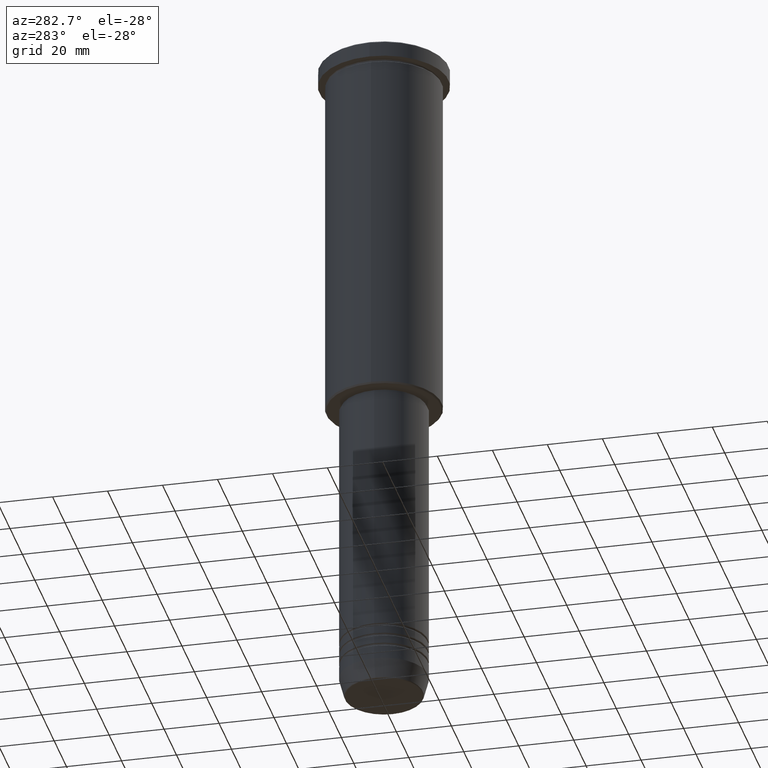
[diagram: clean part render]
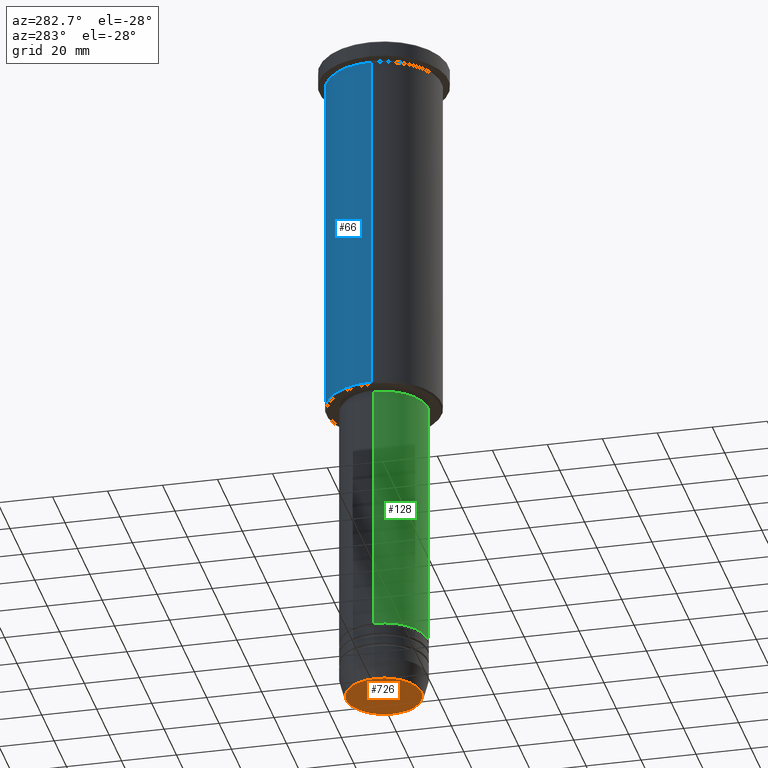
[diagram: same view with three faces highlighted in distinct colors, each labeled with its STEP entity id]
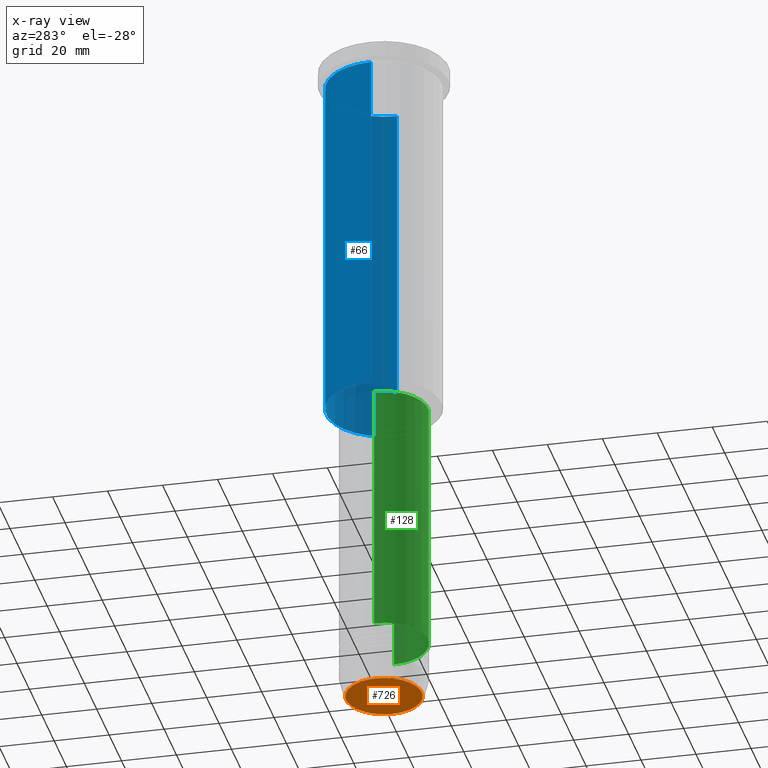
[diagram: x-ray of the same camera — body ghosted, the three highlighted faces saturated]
A machine part, auxiliary view with three faces highlighted in distinct colors.
The next image is the same camera in x-ray (body ghosted, the three faces saturated) — at least one of them is partly hidden behind the body in this view.
Their STEP definitions:

[orange] entity #726 — the highlighted planar face has unit normal (0, -0, 1).
#64 = DIRECTION ( 'NONE',  ( 1.000000000000000000, 0.000000000000000000, 0.000000000000000000 ) ) ;
#79 = VERTEX_POINT ( 'NONE', #872 ) ;
#117 = DIRECTION ( 'NONE',  ( 0.000000000000000000, -0.000000000000000000, 1.000000000000000000 ) ) ;
#133 = DIRECTION ( 'NONE',  ( 1.000000000000000000, 0.000000000000000000, 0.000000000000000000 ) ) ;
#137 = AXIS2_PLACEMENT_3D ( 'NONE', #518, #345, #64 ) ;
#139 = CARTESIAN_POINT ( 'NONE',  ( -13.74069215899265828, 1.712322416342415986E-15, -251.0000000000000000 ) ) ;
#345 = DIRECTION ( 'NONE',  ( 0.000000000000000000, 0.000000000000000000, -1.000000000000000000 ) ) ;
#369 = CIRCLE ( 'NONE', #1042, 13.74069215899265828 ) ;
#439 = EDGE_CURVE ( 'NONE', #79, #834, #369, .T. ) ;
#459 = ORIENTED_EDGE ( 'NONE', *, *, #439, .T. ) ;
#506 = FACE_OUTER_BOUND ( 'NONE', #671, .T. ) ;
#518 = CARTESIAN_POINT ( 'NONE',  ( 0.000000000000000000, 0.000000000000000000, -251.0000000000000000 ) ) ;
#601 = PLANE ( 'NONE',  #722 ) ;
#671 = EDGE_LOOP ( 'NONE', ( #459, #1163 ) ) ;
#722 = AXIS2_PLACEMENT_3D ( 'NONE', #939, #117, #778 ) ;
#726 = ADVANCED_FACE ( 'NONE', ( #506 ), #601, .F. ) ;
#778 = DIRECTION ( 'NONE',  ( 1.000000000000000000, 0.000000000000000000, 0.000000000000000000 ) ) ;
#785 = CARTESIAN_POINT ( 'NONE',  ( 0.000000000000000000, 0.000000000000000000, -251.0000000000000000 ) ) ;
#806 = DIRECTION ( 'NONE',  ( 0.000000000000000000, 0.000000000000000000, -1.000000000000000000 ) ) ;
#833 = EDGE_CURVE ( 'NONE', #834, #79, #982, .T. ) ;
#834 = VERTEX_POINT ( 'NONE', #139 ) ;
#872 = CARTESIAN_POINT ( 'NONE',  ( 13.74069215899265828, 0.000000000000000000, -251.0000000000000000 ) ) ;
#939 = CARTESIAN_POINT ( 'NONE',  ( 0.000000000000000000, 0.000000000000000000, -251.0000000000000000 ) ) ;
#982 = CIRCLE ( 'NONE', #137, 13.74069215899265828 ) ;
#1042 = AXIS2_PLACEMENT_3D ( 'NONE', #785, #806, #133 ) ;
#1163 = ORIENTED_EDGE ( 'NONE', *, *, #833, .T. ) ;

[blue] entity #66 — the highlighted cylindrical surface (partial cylindrical patch) has radius 21 mm, axis along (-0, -0, 1).
#2 = VERTEX_POINT ( 'NONE', #4 ) ;
#4 = CARTESIAN_POINT ( 'NONE',  ( -21.00000000000000000, 2.571758278209441661E-15, -135.5000000000000000 ) ) ;
#7 = CARTESIAN_POINT ( 'NONE',  ( 21.00000000000000000, 0.000000000000000000, -6.999999999999993783 ) ) ;
#21 = DIRECTION ( 'NONE',  ( -0.000000000000000000, -0.000000000000000000, 1.000000000000000000 ) ) ;
#23 = VERTEX_POINT ( 'NONE', #588 ) ;
#46 = DIRECTION ( 'NONE',  ( -0.000000000000000000, -0.000000000000000000, 1.000000000000000000 ) ) ;
#65 = CARTESIAN_POINT ( 'NONE',  ( 21.00000000000000000, 0.000000000000000000, -135.5000000000000000 ) ) ;
#66 = ADVANCED_FACE ( 'NONE', ( #744 ), #1016, .T. ) ;
#106 = AXIS2_PLACEMENT_3D ( 'NONE', #350, #627, #185 ) ;
#142 = VECTOR ( 'NONE', #273, 1000.000000000000000 ) ;
#161 = ORIENTED_EDGE ( 'NONE', *, *, #707, .F. ) ;
#185 = DIRECTION ( 'NONE',  ( -1.000000000000000000, 0.000000000000000000, 0.000000000000000000 ) ) ;
#198 = CIRCLE ( 'NONE', #106, 21.00000000000000000 ) ;
#206 = ORIENTED_EDGE ( 'NONE', *, *, #341, .F. ) ;
#224 = EDGE_CURVE ( 'NONE', #608, #2, #198, .T. ) ;
#273 = DIRECTION ( 'NONE',  ( -0.000000000000000000, -0.000000000000000000, 1.000000000000000000 ) ) ;
#327 = ORIENTED_EDGE ( 'NONE', *, *, #532, .T. ) ;
#341 = EDGE_CURVE ( 'NONE', #1009, #23, #423, .T. ) ;
#350 = CARTESIAN_POINT ( 'NONE',  ( 0.000000000000000000, 0.000000000000000000, -135.5000000000000000 ) ) ;
#394 = CARTESIAN_POINT ( 'NONE',  ( 21.00000000000000000, 0.000000000000000000, 0.000000000000000000 ) ) ;
#402 = DIRECTION ( 'NONE',  ( 1.000000000000000000, 0.000000000000000000, 0.000000000000000000 ) ) ;
#423 = CIRCLE ( 'NONE', #1006, 21.00000000000000000 ) ;
#472 = CARTESIAN_POINT ( 'NONE',  ( 0.000000000000000000, 0.000000000000000000, 0.000000000000000000 ) ) ;
#532 = EDGE_CURVE ( 'NONE', #2, #23, #1121, .T. ) ;
#588 = CARTESIAN_POINT ( 'NONE',  ( -21.00000000000000000, 2.571758278209441661E-15, -6.999999999999993783 ) ) ;
#608 = VERTEX_POINT ( 'NONE', #65 ) ;
#627 = DIRECTION ( 'NONE',  ( -0.000000000000000000, -0.000000000000000000, 1.000000000000000000 ) ) ;
#686 = VECTOR ( 'NONE', #961, 1000.000000000000000 ) ;
#707 = EDGE_CURVE ( 'NONE', #608, #1009, #870, .T. ) ;
#744 = FACE_OUTER_BOUND ( 'NONE', #943, .T. ) ;
#752 = DIRECTION ( 'NONE',  ( 1.000000000000000000, 0.000000000000000000, 0.000000000000000000 ) ) ;
#866 = CARTESIAN_POINT ( 'NONE',  ( 0.000000000000000000, 0.000000000000000000, -6.999999999999993783 ) ) ;
#870 = LINE ( 'NONE', #394, #686 ) ;
#929 = ORIENTED_EDGE ( 'NONE', *, *, #224, .T. ) ;
#943 = EDGE_LOOP ( 'NONE', ( #929, #327, #206, #161 ) ) ;
#961 = DIRECTION ( 'NONE',  ( -0.000000000000000000, -0.000000000000000000, 1.000000000000000000 ) ) ;
#1006 = AXIS2_PLACEMENT_3D ( 'NONE', #866, #46, #402 ) ;
#1009 = VERTEX_POINT ( 'NONE', #7 ) ;
#1016 = CYLINDRICAL_SURFACE ( 'NONE', #1173, 21.00000000000000000 ) ;
#1037 = CARTESIAN_POINT ( 'NONE',  ( -21.00000000000000000, 2.571758278209441661E-15, 0.000000000000000000 ) ) ;
#1121 = LINE ( 'NONE', #1037, #142 ) ;
#1173 = AXIS2_PLACEMENT_3D ( 'NONE', #472, #21, #752 ) ;

[green] entity #128 — the highlighted cylindrical surface (partial cylindrical patch) has radius 16 mm, axis along (-0, -0, 1).
#50 = AXIS2_PLACEMENT_3D ( 'NONE', #579, #1144, #55 ) ;
#55 = DIRECTION ( 'NONE',  ( 1.000000000000000000, 0.000000000000000000, 0.000000000000000000 ) ) ;
#58 = CARTESIAN_POINT ( 'NONE',  ( 16.00000000000000355, 0.000000000000000000, -137.0000000000000000 ) ) ;
#77 = EDGE_CURVE ( 'NONE', #292, #687, #443, .T. ) ;
#80 = CARTESIAN_POINT ( 'NONE',  ( 16.00000000000000000, 0.000000000000000000, 0.000000000000000000 ) ) ;
#128 = ADVANCED_FACE ( 'NONE', ( #252 ), #1067, .T. ) ;
#153 = DIRECTION ( 'NONE',  ( -0.000000000000000000, -0.000000000000000000, 1.000000000000000000 ) ) ;
#204 = DIRECTION ( 'NONE',  ( -0.000000000000000000, -0.000000000000000000, 1.000000000000000000 ) ) ;
#247 = DIRECTION ( 'NONE',  ( 1.000000000000000000, 0.000000000000000000, 0.000000000000000000 ) ) ;
#252 = FACE_OUTER_BOUND ( 'NONE', #1109, .T. ) ;
#270 = VECTOR ( 'NONE', #1166, 1000.000000000000000 ) ;
#292 = VERTEX_POINT ( 'NONE', #864 ) ;
#311 = EDGE_CURVE ( 'NONE', #292, #349, #670, .T. ) ;
#313 = CARTESIAN_POINT ( 'NONE',  ( 16.00000000000000000, 0.000000000000000000, -229.9999999999998863 ) ) ;
#338 = CIRCLE ( 'NONE', #354, 16.00000000000000355 ) ;
#349 = VERTEX_POINT ( 'NONE', #691 ) ;
#354 = AXIS2_PLACEMENT_3D ( 'NONE', #517, #414, #791 ) ;
#414 = DIRECTION ( 'NONE',  ( -0.000000000000000000, -0.000000000000000000, 1.000000000000000000 ) ) ;
#443 = CIRCLE ( 'NONE', #50, 16.00000000000000000 ) ;
#456 = VERTEX_POINT ( 'NONE', #58 ) ;
#464 = EDGE_CURVE ( 'NONE', #349, #456, #338, .T. ) ;
#466 = ORIENTED_EDGE ( 'NONE', *, *, #77, .T. ) ;
#493 = AXIS2_PLACEMENT_3D ( 'NONE', #796, #153, #247 ) ;
#517 = CARTESIAN_POINT ( 'NONE',  ( 0.000000000000000000, 0.000000000000000000, -137.0000000000000000 ) ) ;
#528 = ORIENTED_EDGE ( 'NONE', *, *, #827, .T. ) ;
#579 = CARTESIAN_POINT ( 'NONE',  ( 0.000000000000000000, 0.000000000000000000, -229.9999999999998863 ) ) ;
#670 = LINE ( 'NONE', #1017, #1058 ) ;
#687 = VERTEX_POINT ( 'NONE', #313 ) ;
#691 = CARTESIAN_POINT ( 'NONE',  ( -16.00000000000000355, 1.959434878635765526E-15, -137.0000000000000000 ) ) ;
#791 = DIRECTION ( 'NONE',  ( 1.000000000000000000, 0.000000000000000000, 0.000000000000000000 ) ) ;
#796 = CARTESIAN_POINT ( 'NONE',  ( 0.000000000000000000, 0.000000000000000000, 0.000000000000000000 ) ) ;
#827 = EDGE_CURVE ( 'NONE', #687, #456, #988, .T. ) ;
#864 = CARTESIAN_POINT ( 'NONE',  ( -16.00000000000000000, 1.959434878635765131E-15, -229.9999999999998863 ) ) ;
#945 = ORIENTED_EDGE ( 'NONE', *, *, #311, .F. ) ;
#988 = LINE ( 'NONE', #80, #270 ) ;
#1015 = ORIENTED_EDGE ( 'NONE', *, *, #464, .F. ) ;
#1017 = CARTESIAN_POINT ( 'NONE',  ( -16.00000000000000000, 1.959434878635765131E-15, 0.000000000000000000 ) ) ;
#1058 = VECTOR ( 'NONE', #204, 1000.000000000000000 ) ;
#1067 = CYLINDRICAL_SURFACE ( 'NONE', #493, 16.00000000000000000 ) ;
#1109 = EDGE_LOOP ( 'NONE', ( #945, #466, #528, #1015 ) ) ;
#1144 = DIRECTION ( 'NONE',  ( -0.000000000000000000, -0.000000000000000000, 1.000000000000000000 ) ) ;
#1166 = DIRECTION ( 'NONE',  ( -0.000000000000000000, -0.000000000000000000, 1.000000000000000000 ) ) ;